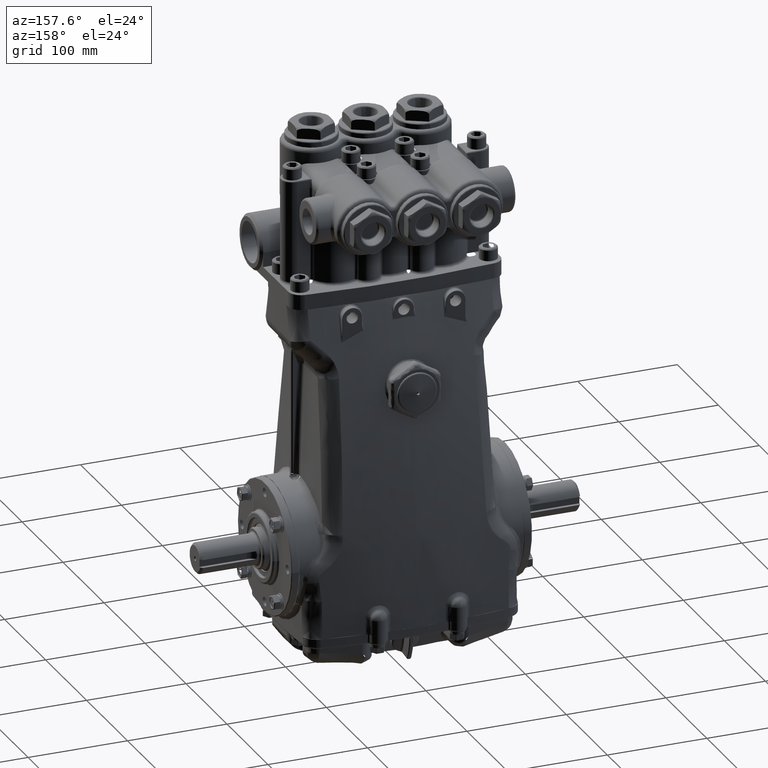
[diagram: clean part render]
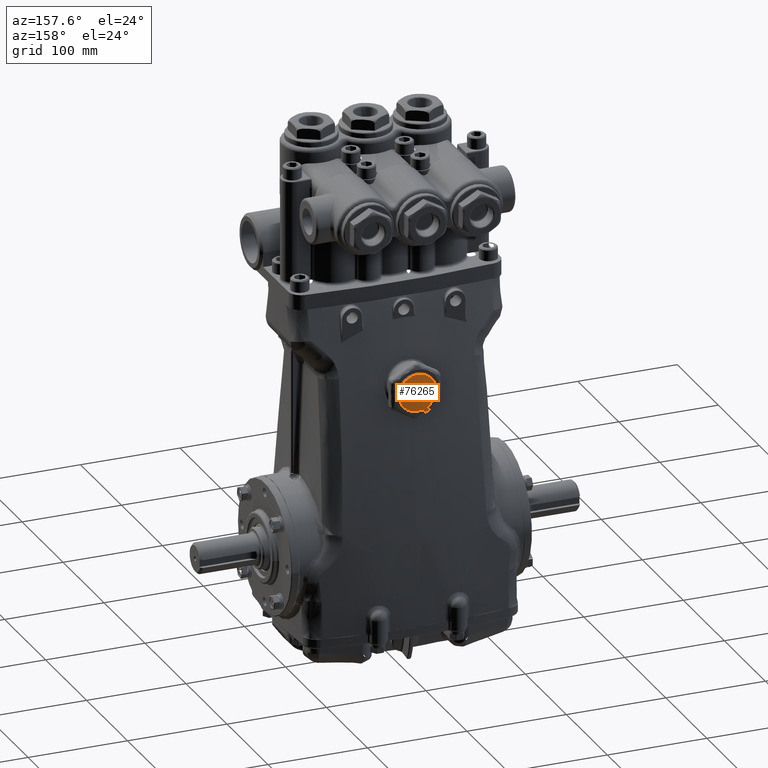
[diagram: same view with one face highlighted and labeled with its STEP entity id]
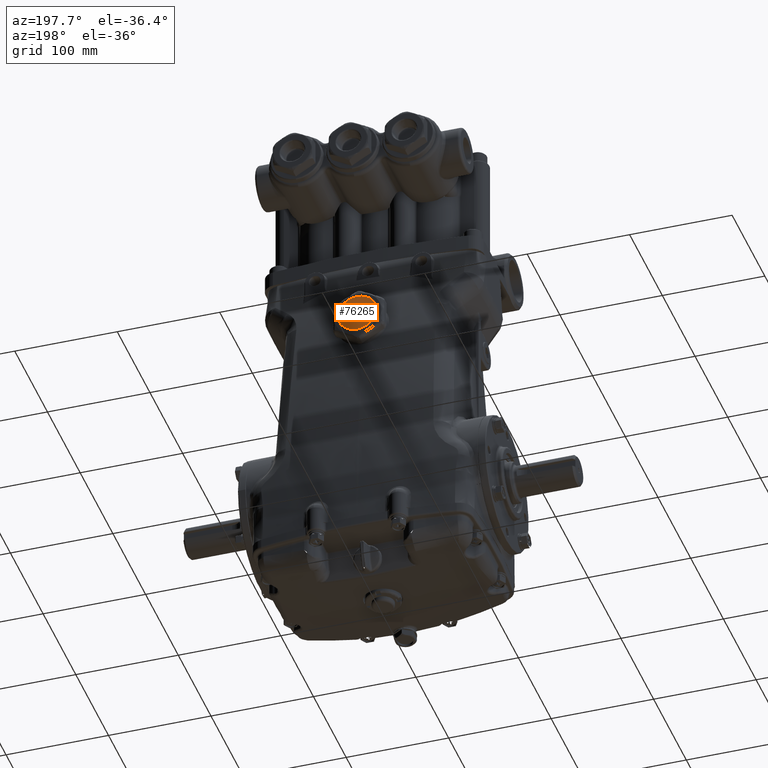
[diagram: same view with one face highlighted and labeled with its STEP entity id]
A machine part, auxiliary view. The second image highlights one B-rep face of the part: STEP entity #76265.
A second angle (auxiliary view) of the same face is appended — the face is thin or edge-on in the first view.
In plain terms, the highlighted spherical surface has radius 100 mm.
Its self-contained STEP definition (entity closure, byte-faithful):
#2900 = FACE_OUTER_BOUND ( 'NONE', #89990, .T. ) ;
#4918 = CIRCLE ( 'NONE', #9592, 0.05905511811023627516 ) ;
#5682 = DIRECTION ( 'NONE',  ( 0.000000000000000000, 0.000000000000000000, 1.000000000000000000 ) ) ;
#7775 = AXIS2_PLACEMENT_3D ( 'NONE', #28055, #87976, #50638 ) ;
#9592 = AXIS2_PLACEMENT_3D ( 'NONE', #75593, #30870, #23503 ) ;
#11853 = VERTEX_POINT ( 'NONE', #94352 ) ;
#15277 = EDGE_CURVE ( 'NONE', #11853, #64207, #90927, .T. ) ;
#23503 = DIRECTION ( 'NONE',  ( 0.000000000000000000, 0.000000000000000000, 1.000000000000000000 ) ) ;
#25949 = EDGE_LOOP ( 'NONE', ( #74557, #51350 ) ) ;
#26999 = CARTESIAN_POINT ( 'NONE',  ( 0.000000000000000000, -0.7283464566929140904, 6.653543307086613900 ) ) ;
#27480 = FACE_BOUND ( 'NONE', #25949, .T. ) ;
#28055 = CARTESIAN_POINT ( 'NONE',  ( 0.000000000000000000, 3.138598384411150910, 6.653543307086613900 ) ) ;
#28210 = AXIS2_PLACEMENT_3D ( 'NONE', #43000, #72985, #5682 ) ;
#29212 = ORIENTED_EDGE ( 'NONE', *, *, #85983, .T. ) ;
#30870 = DIRECTION ( 'NONE',  ( -0.000000000000000000, 1.000000000000000000, -0.000000000000000000 ) ) ;
#31669 = CARTESIAN_POINT ( 'NONE',  ( 0.000000000000000000, 3.138598384411150910, 7.392981334186018216 ) ) ;
#43000 = CARTESIAN_POINT ( 'NONE',  ( 0.000000000000000000, 3.208218479020326086, 6.653543307086613900 ) ) ;
#44298 = VERTEX_POINT ( 'NONE', #83150 ) ;
#44726 = CARTESIAN_POINT ( 'NONE',  ( 0.000000000000000000, 3.138598384411150910, 6.653543307086613900 ) ) ;
#49562 = DIRECTION ( 'NONE',  ( 0.000000000000000000, 1.000000000000000000, 0.000000000000000000 ) ) ;
#50638 = DIRECTION ( 'NONE',  ( 0.000000000000000000, 0.000000000000000000, 1.000000000000000000 ) ) ;
#51350 = ORIENTED_EDGE ( 'NONE', *, *, #93576, .F. ) ;
#53300 = CIRCLE ( 'NONE', #7775, 0.7394380270994049820 ) ;
#56433 = SPHERICAL_SURFACE ( 'NONE', #85240, 3.937007874015748143 ) ;
#61549 = CARTESIAN_POINT ( 'NONE',  ( 7.232166136696873300E-18, 3.208218479020326086, 6.594488188976377785 ) ) ;
#63689 = CIRCLE ( 'NONE', #96625, 0.7394380270994049820 ) ;
#64207 = VERTEX_POINT ( 'NONE', #61549 ) ;
#67056 = ORIENTED_EDGE ( 'NONE', *, *, #79527, .T. ) ;
#72985 = DIRECTION ( 'NONE',  ( -0.000000000000000000, 1.000000000000000000, -0.000000000000000000 ) ) ;
#74557 = ORIENTED_EDGE ( 'NONE', *, *, #15277, .F. ) ;
#74729 = DIRECTION ( 'NONE',  ( -0.000000000000000000, 1.000000000000000000, -0.000000000000000000 ) ) ;
#75593 = CARTESIAN_POINT ( 'NONE',  ( 0.000000000000000000, 3.208218479020326086, 6.653543307086613900 ) ) ;
#76265 = ADVANCED_FACE ( 'NONE', ( #27480, #2900 ), #56433, .T. ) ;
#79527 = EDGE_CURVE ( 'NONE', #44298, #86876, #63689, .T. ) ;
#79534 = DIRECTION ( 'NONE',  ( 1.000000000000000000, 0.000000000000000000, 0.000000000000000000 ) ) ;
#83150 = CARTESIAN_POINT ( 'NONE',  ( 9.349196156406901570E-17, 3.138598384411150910, 5.914105279987208696 ) ) ;
#85240 = AXIS2_PLACEMENT_3D ( 'NONE', #26999, #49562, #79534 ) ;
#85983 = EDGE_CURVE ( 'NONE', #86876, #44298, #53300, .T. ) ;
#86876 = VERTEX_POINT ( 'NONE', #31669 ) ;
#87976 = DIRECTION ( 'NONE',  ( -0.000000000000000000, 1.000000000000000000, -0.000000000000000000 ) ) ;
#89990 = EDGE_LOOP ( 'NONE', ( #29212, #67056 ) ) ;
#90927 = CIRCLE ( 'NONE', #28210, 0.05905511811023627516 ) ;
#91861 = DIRECTION ( 'NONE',  ( 0.000000000000000000, 0.000000000000000000, 1.000000000000000000 ) ) ;
#93576 = EDGE_CURVE ( 'NONE', #64207, #11853, #4918, .T. ) ;
#94352 = CARTESIAN_POINT ( 'NONE',  ( 0.000000000000000000, 3.208218479020326086, 6.712598425196850016 ) ) ;
#96625 = AXIS2_PLACEMENT_3D ( 'NONE', #44726, #74729, #91861 ) ;